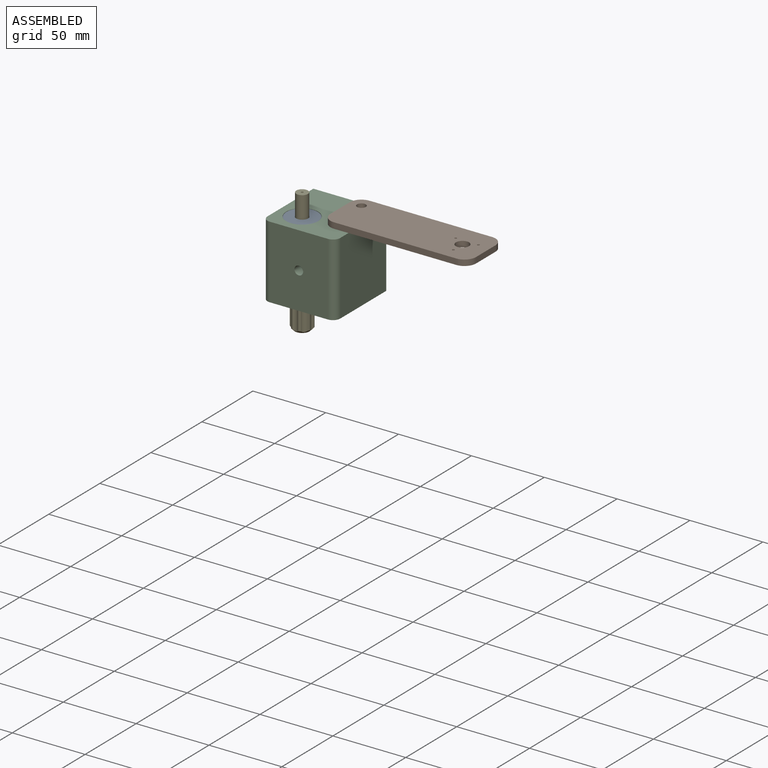
[diagram: assembled view]
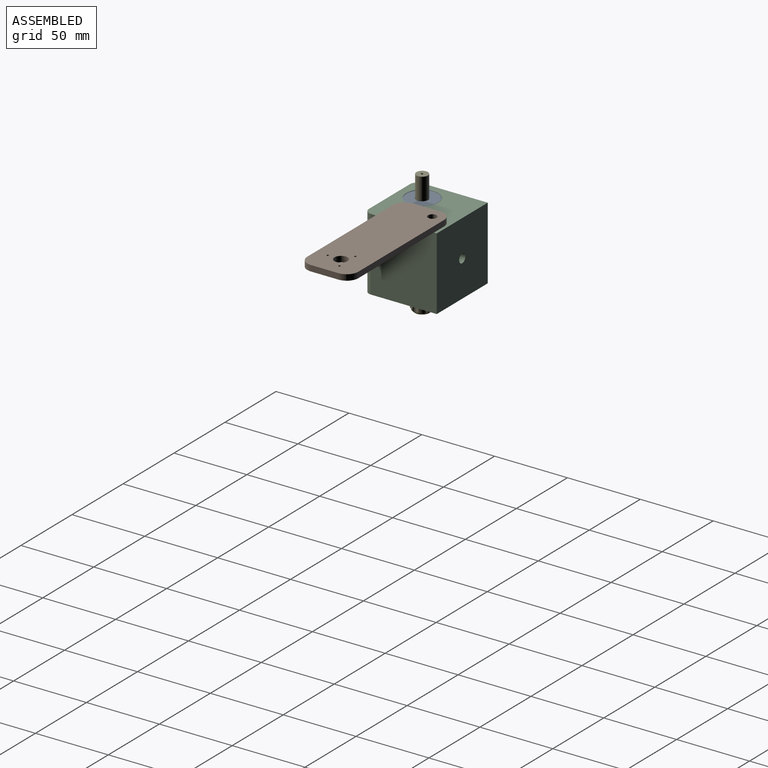
[diagram: assembled view, second angle]
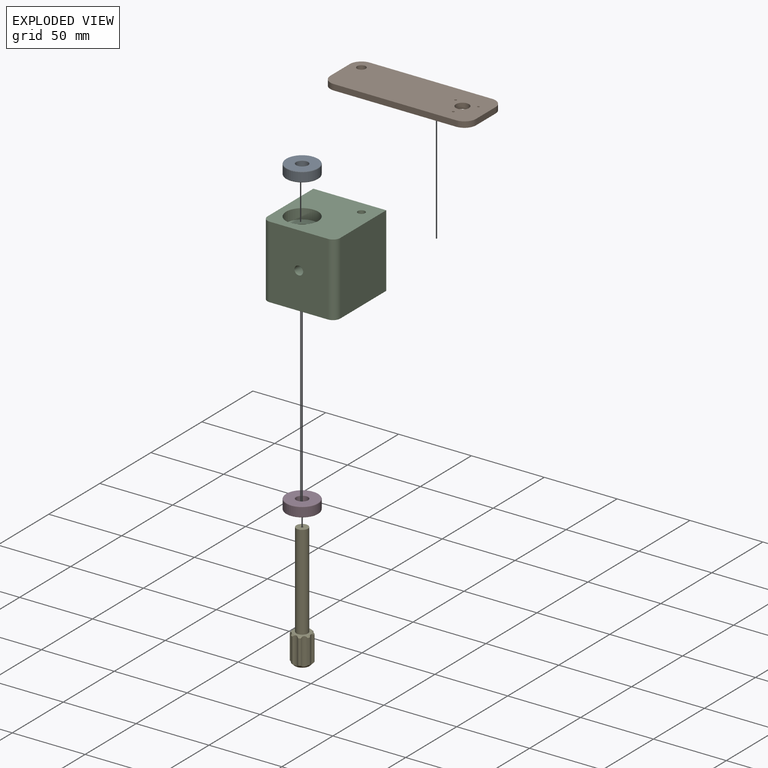
[diagram: exploded view]
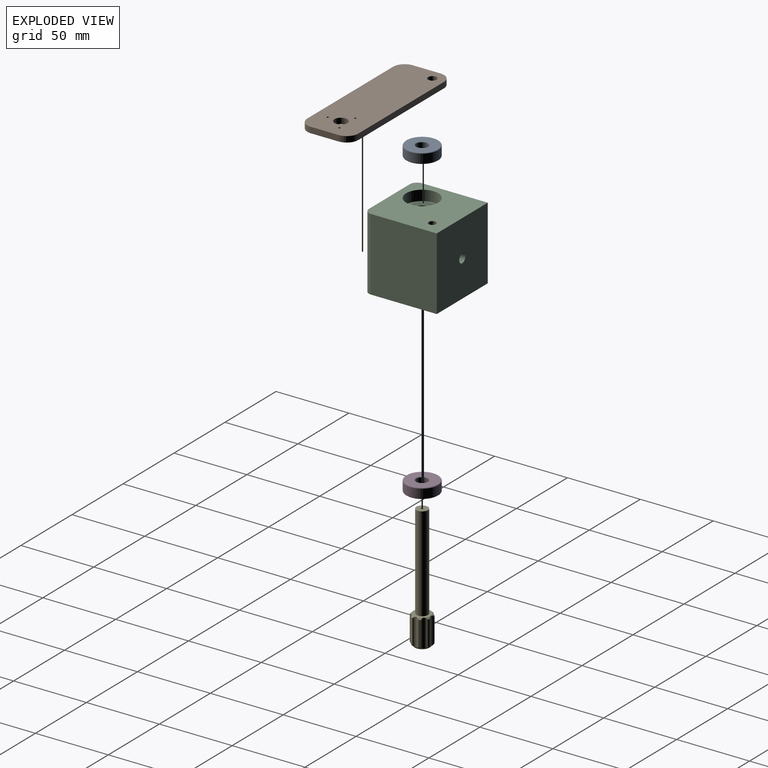
[diagram: exploded view, second angle]
ASSEMBLY  parts=5 mates=4
PART A: 8 faces, bbox 23.8x23.8x7 mm
  f0: cylinder r=4mm len=8mm, axis (0,0,-1), area 150.8mm2, adj f4,f6
  f1: cylinder r=11mm len=22mm, axis (0,0,-1), area 414.7mm2, adj f5,f7
  f2: plane 21x21mm, normal (0,0,1), area 282.7mm2, adj f6,f7
  f3: plane 21x21mm, normal (0,0,-1), area 282.7mm2, adj f4,f5
  f4: torus R=4.5mm, axis (0,0,1), area 20.6mm2, adj f0,f3
  f5: torus R=10.5mm, axis (0,0,1), area 53.4mm2, adj f1,f3
  f6: torus R=4.5mm, axis (0,0,1), area 20.6mm2, adj f0,f2
  f7: torus R=10.5mm, axis (0,0,1), area 53.4mm2, adj f1,f2
PART B: 15 faces, bbox 100x35x4 mm
  f0: cylinder r=8mm len=8mm, axis (0,0,-1), area 50.3mm2, adj f1,f12,f13,f14
  f1: plane 84x4mm, normal (0,-1,0), area 336mm2, adj f0,f2,f13,f14
  f2: cylinder r=8mm len=8mm, axis (0,0,-1), area 50.3mm2, adj f1,f3,f13,f14
  f3: plane 19x4mm, normal (1,0,0), area 76mm2, adj f2,f4,f13,f14
  f4: cylinder r=8mm len=8mm, axis (0,0,-1), area 50.3mm2, adj f3,f5,f13,f14
  f5: plane 84x4mm, normal (0,1,0), area 336mm2, adj f4,f6,f13,f14
  f6: cylinder r=8mm len=8mm, axis (0,0,-1), area 50.3mm2, adj f5,f12,f13,f14
  f7: cylinder r=4.5mm len=9mm, axis (0,0,-1), area 113.1mm2, adj f13,f14
  f8: cylinder r=0.75mm len=4mm, axis (0,0,-1), area 18.8mm2, adj f13,f14
  f9: cylinder r=0.75mm len=4mm, axis (0,0,-1), area 18.8mm2, adj f13,f14
  f10: cylinder r=0.75mm len=4mm, axis (0,0,-1), area 18.8mm2, adj f13,f14
  f11: cylinder r=3mm len=6mm, axis (0,0,-1), area 75.4mm2, adj f13,f14
  f12: plane 19x4mm, normal (-1,0,0), area 76mm2, adj f0,f6,f13,f14
  f13: plane 100x35mm, normal (0,0,1), area 3347.9mm2, adj f0,f1,f2,f3,f4,f5,f6,f7
  f14: plane 100x35mm, normal (0,0,-1), area 3347.9mm2, adj f0,f1,f2,f3,f4,f5,f6,f7
PART C: 16 faces, bbox 50x50x50 mm
  f0: cylinder r=5mm len=36mm, axis (0,-1,0), area 1131mm2, adj f8,f10
  f1: plane 50x50mm, normal (0,-1,0), area 2109.1mm2, adj f2,f3,f5,f6,f7,f14,f15
  f2: plane 50x45mm, normal (-1,0,0), area 2250mm2, adj f1,f4,f6,f15
  f3: plane 50x45mm, normal (1,0,0), area 2250mm2, adj f1,f4,f6,f14
  f4: plane 50x50mm, normal (0,1,0), area 2089.5mm2, adj f2,f3,f5,f6,f9,f11,f14,f15
  f5: plane 50x40mm, normal (0,0,1), area 1971.7mm2, adj f1,f4,f13,f14,f15
  f6: plane 50x50mm, normal (0,0,-1), area 2471.7mm2, adj f1,f2,f3,f4,f13
  f7: cylinder r=11mm len=22mm, axis (0,-1,0), area 483.8mm2, adj f1,f8
  f8: plane 22x22mm, normal (0,-1,0), area 301.6mm2, adj f0,f7
  f9: cylinder r=11mm len=22mm, axis (0,1,0), area 483.8mm2, adj f4,f10
  f10: plane 22x22mm, normal (0,1,0), area 301.6mm2, adj f0,f9
  f11: cylinder r=2.5mm len=15mm, axis (0,1,0), area 235.6mm2, adj f4,f12
  f12: plane 5x5mm, normal (0,1,0), area 19.6mm2, adj f11
  f13: cylinder r=3mm len=50mm, axis (0,0,1), area 942.5mm2, adj f5,f6
  f14: cylinder r=5mm len=50mm, axis (0,-1,0), area 392.7mm2, adj f1,f3,f4,f5
  f15: cylinder r=5mm len=50mm, axis (0,1,0), area 392.7mm2, adj f1,f2,f4,f5
PART D: same geometry as A
PART E: 32 faces, bbox 14x14x85 mm
  f0: cylinder r=7mm len=17mm, axis (0,0,1), area 26.2mm2, adj f13,f16,f23,f24
  f1: cylinder r=7mm len=17mm, axis (0,0,1), area 26.2mm2, adj f13,f22,f23,f25
  f2: cylinder r=7mm len=17mm, axis (0,0,1), area 26.2mm2, adj f13,f21,f22,f26
  f3: cylinder r=7mm len=17mm, axis (0,0,1), area 26.2mm2, adj f13,f20,f21,f27
  f4: cylinder r=7mm len=17mm, axis (0,0,1), area 26.2mm2, adj f13,f19,f20,f28
  f5: cylinder r=7mm len=17mm, axis (0,0,1), area 26.2mm2, adj f13,f18,f19,f29
  f6: cylinder r=7mm len=17mm, axis (0,0,1), area 26.2mm2, adj f13,f17,f18,f31
  f7: plane 12x12mm, normal (0,0,-1), area 62.8mm2, adj f9,f24,f25,f26,f27,f28,f29,f30
  f8: cylinder r=0.75mm len=84mm, axis (0,0,1), area 395.8mm2, adj f10,f15
  f9: cylinder r=4mm len=65mm, axis (0,0,1), area 1633.6mm2, adj f7,f10
  f10: plane 8x8mm, normal (0,0,-1), area 48.5mm2, adj f8,f9
  f11: plane 10x10mm, normal (0,0,1), area 50.3mm2, adj f13,f14
  f12: cylinder r=7mm len=17mm, axis (0,0,1), area 26.2mm2, adj f13,f16,f17,f30
  f13: cone r=5mm half-angle=45deg, axis (0,0,-1), area 76.6mm2, adj f0,f1,f2,f3,f4,f5,f6,f11
  f14: cylinder r=3mm len=6mm, axis (0,0,1), area 18.8mm2, adj f11,f15
  f15: plane 6x6mm, normal (0,0,1), area 26.5mm2, adj f8,f14
  f16: cylinder r=3mm len=19mm, axis (0,0,1), area 77.8mm2, adj f0,f12,f13,f24,f30
  f17: cylinder r=3mm len=19mm, axis (0,0,1), area 77.8mm2, adj f6,f12,f13,f30,f31
  f18: cylinder r=3mm len=19mm, axis (0,0,1), area 77.8mm2, adj f5,f6,f13,f29,f31
  f19: cylinder r=3mm len=19mm, axis (0,0,1), area 77.8mm2, adj f4,f5,f13,f28,f29
  f20: cylinder r=3mm len=19mm, axis (0,0,1), area 77.8mm2, adj f3,f4,f13,f27,f28
  f21: cylinder r=3mm len=19mm, axis (0,0,1), area 77.8mm2, adj f2,f3,f13,f26,f27
  f22: cylinder r=3mm len=19mm, axis (0,0,1), area 77.8mm2, adj f1,f2,f13,f25,f26
  f23: cylinder r=3mm len=19mm, axis (0,0,1), area 77.8mm2, adj f0,f1,f13,f24,f25
  f24: cone r=7mm half-angle=45deg, axis (0,0,1), area 3.5mm2, adj f0,f7,f16,f23
  f25: cone r=7mm half-angle=45deg, axis (0,0,1), area 3.5mm2, adj f1,f7,f22,f23
  f26: cone r=7mm half-angle=45deg, axis (0,0,1), area 3.5mm2, adj f2,f7,f21,f22
  f27: cone r=7mm half-angle=45deg, axis (0,0,1), area 3.5mm2, adj f3,f7,f20,f21
  f28: cone r=7mm half-angle=45deg, axis (0,0,1), area 3.5mm2, adj f4,f7,f19,f20
  f29: cone r=7mm half-angle=45deg, axis (0,0,1), area 3.5mm2, adj f5,f7,f18,f19
  f30: cone r=7mm half-angle=45deg, axis (0,0,1), area 3.5mm2, adj f7,f12,f16,f17
  f31: cone r=7mm half-angle=45deg, axis (0,0,1), area 3.5mm2, adj f6,f7,f17,f18
PLACE A t=(44,-5.8,-3)mm
PLACE B rot(axis=(1,0,0),180deg) t=(0,76,8)mm
PLACE C rot(axis=(1,0,0),90deg) t=(-32,48,4)mm
PLACE D rot(axis=(1,0,0),180deg) t=(44,34.2,-39)mm
PLACE E rot(axis=(1,0,0),180deg) t=(34,-15.8,-66)mm
MATE revolute B.f0 <-> C.f11  axis (0,0,1) through (8,38,4)mm
MATE fastened A.f0 <-> C.f0  axis (0,0,1) through (-16,14.2,4)mm
MATE revolute E.f0 <-> D.f0  axis (0,0,-1) through (-16,14.2,-46)mm
MATE fastened D.f0 <-> C.f0  axis (0,0,-1) through (-16,14.2,-46)mm
